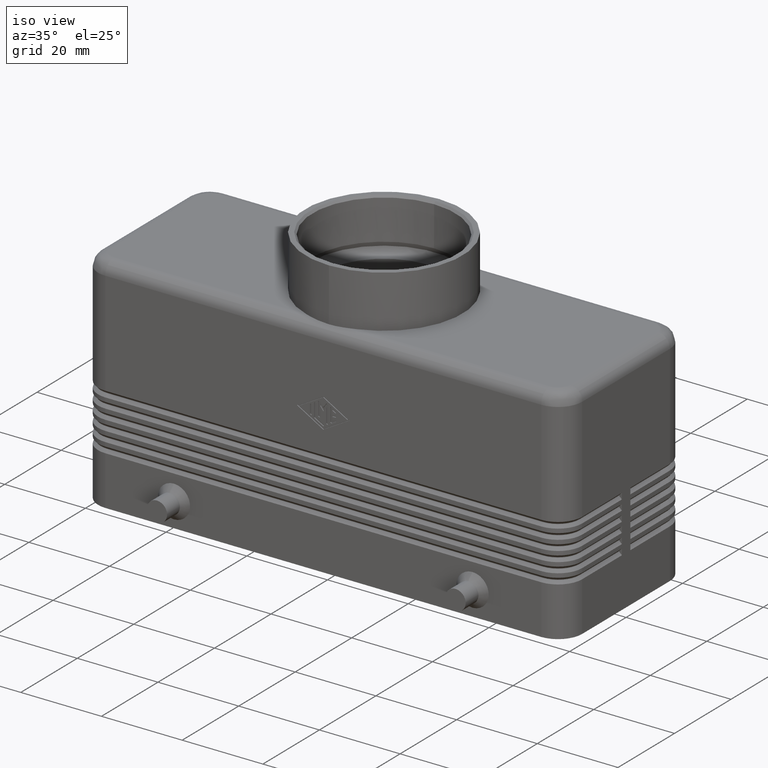
[diagram: clean part render]
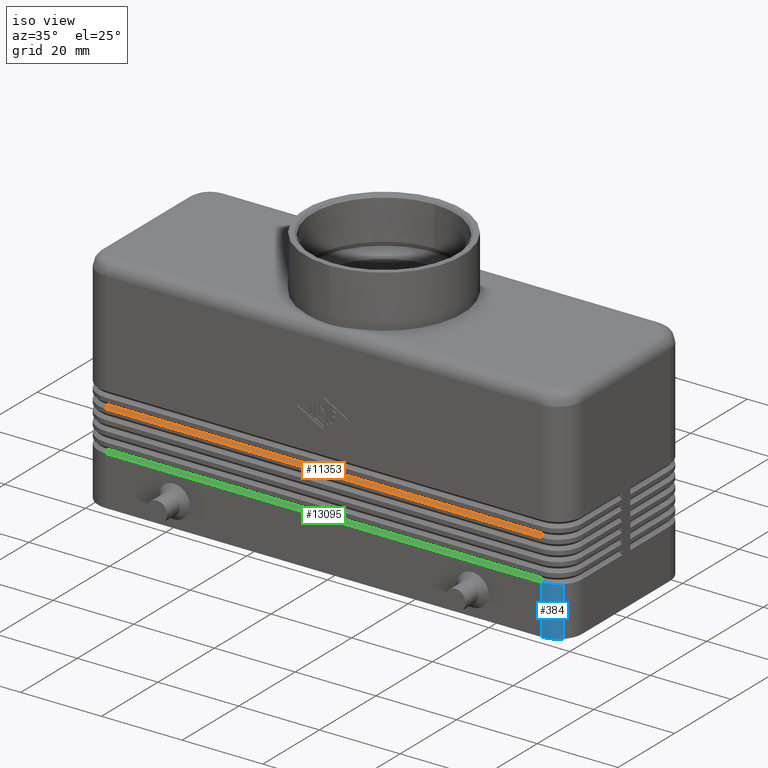
[diagram: same view with three faces highlighted in distinct colors, each labeled with its STEP entity id]
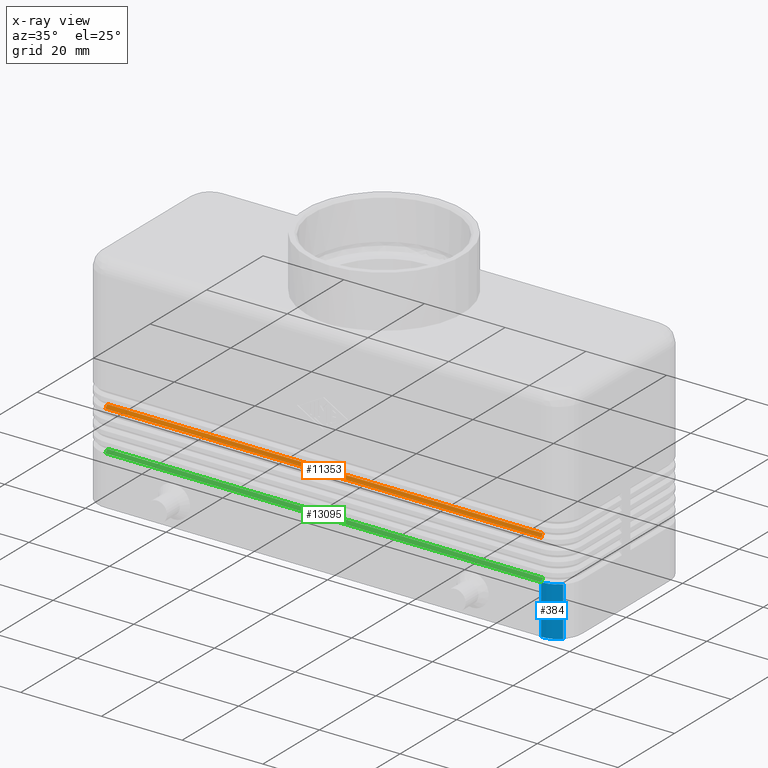
[diagram: x-ray of the same camera — body ghosted, the three highlighted faces saturated]
A machine part, iso view with three faces highlighted in distinct colors.
The next image is the same camera in x-ray (body ghosted, the three faces saturated) — at least one of them is partly hidden behind the body in this view.
Their STEP definitions:

[orange] entity #11353 — the highlighted planar face has unit normal (-0, -0.7071, 0.7071).
#1239=CARTESIAN_POINT('',(-53.999999999999986,-21.500000000000000,22.250000000000021));
#1240=VERTEX_POINT('',#1239);
#1270=CARTESIAN_POINT('',(54.0,-21.500000000000000,22.250000000000000));
#1271=VERTEX_POINT('',#1270);
#1310=CARTESIAN_POINT('',(54.000000000000014,-20.799999999999979,22.950000000000003));
#1311=VERTEX_POINT('',#1310);
#1319=CARTESIAN_POINT('',(54.0,-21.500000000000000,22.250000000000000));
#1320=DIRECTION('',(1.435513E-014,0.707106781186556,0.707106781186539));
#1321=VECTOR('',#1320,0.989949493661183);
#1322=LINE('',#1319,#1321);
#1323=EDGE_CURVE('',#1271,#1311,#1322,.T.);
#11314=CARTESIAN_POINT('',(-53.999999999999993,-20.800000000000001,22.950000000000003));
#11315=VERTEX_POINT('',#11314);
#11316=CARTESIAN_POINT('',(-53.999999999999986,-21.500000000000000,22.250000000000021));
#11317=DIRECTION('',(-7.177566E-015,0.707106781186557,0.707106781186539));
#11318=VECTOR('',#11317,0.989949493661153);
#11319=LINE('',#11316,#11318);
#11320=EDGE_CURVE('',#1240,#11315,#11319,.T.);
#11332=CARTESIAN_POINT('',(4.718448E-015,-21.150000000000002,22.600000000000001));
#11333=DIRECTION('',(-3.047225E-034,-0.707106781186550,0.707106781186545));
#11334=DIRECTION('',(1.0,0.0,0.0));
#11335=AXIS2_PLACEMENT_3D('',#11332,#11333,#11334);
#11336=PLANE('',#11335);
#11337=ORIENTED_EDGE('',*,*,#1323,.T.);
#11338=CARTESIAN_POINT('',(54.000000000000014,-20.799999999999979,22.950000000000003));
#11339=DIRECTION('',(-1.0,0.0,0.0));
#11340=VECTOR('',#11339,108.0);
#11341=LINE('',#11338,#11340);
#11342=EDGE_CURVE('',#1311,#11315,#11341,.T.);
#11343=ORIENTED_EDGE('',*,*,#11342,.T.);
#11344=ORIENTED_EDGE('',*,*,#11320,.F.);
#11345=CARTESIAN_POINT('',(-53.999999999999986,-21.500000000000000,22.250000000000021));
#11346=DIRECTION('',(1.0,0.0,0.0));
#11347=VECTOR('',#11346,107.999999999999990);
#11348=LINE('',#11345,#11347);
#11349=EDGE_CURVE('',#1240,#1271,#11348,.T.);
#11350=ORIENTED_EDGE('',*,*,#11349,.T.);
#11351=EDGE_LOOP('',(#11337,#11343,#11344,#11350));
#11352=FACE_OUTER_BOUND('',#11351,.T.);
#11353=ADVANCED_FACE('',(#11352),#11336,.T.);

[blue] entity #384 — the highlighted cylindrical surface (edge-blend (fillet) strip) has radius 6 mm, axis along (0, 0, -1).
#343=CARTESIAN_POINT('',(54.0,-15.499999999999998,13.750000000000004));
#344=DIRECTION('',(1.614870E-016,0.0,-1.0));
#345=DIRECTION('',(0.707106781186547,-0.707106781186548,0.0));
#346=AXIS2_PLACEMENT_3D('',#343,#344,#345);
#347=CYLINDRICAL_SURFACE('',#346,6.0);
#348=CARTESIAN_POINT('',(58.242640687119284,-19.742640687119287,12.250000000000021));
#349=VERTEX_POINT('',#348);
#350=CARTESIAN_POINT('',(58.242640687119284,-19.742640687119284,1.776357E-014));
#351=VERTEX_POINT('',#350);
#352=CARTESIAN_POINT('',(58.242640687119284,-19.742640687119287,12.250000000000021));
#353=DIRECTION('',(0.0,0.0,-1.0));
#354=VECTOR('',#353,12.250000000000004);
#355=LINE('',#352,#354);
#356=EDGE_CURVE('',#349,#351,#355,.T.);
#357=ORIENTED_EDGE('',*,*,#356,.F.);
#358=CARTESIAN_POINT('',(54.0,-21.500000000000000,12.250000000000000));
#359=VERTEX_POINT('',#358);
#360=CARTESIAN_POINT('',(54.0,-15.499999999999998,12.250000000000021));
#361=DIRECTION('',(0.0,0.0,1.0));
#362=DIRECTION('',(0.707106781186547,-0.707106781186548,0.0));
#363=AXIS2_PLACEMENT_3D('',#360,#361,#362);
#364=CIRCLE('',#363,6.000000000000001);
#365=EDGE_CURVE('',#359,#349,#364,.T.);
#366=ORIENTED_EDGE('',*,*,#365,.F.);
#367=CARTESIAN_POINT('',(54.0,-21.500000000000000,0.0));
#368=VERTEX_POINT('',#367);
#369=CARTESIAN_POINT('',(54.0,-21.500000000000000,12.250000000000000));
#370=DIRECTION('',(0.0,0.0,-1.0));
#371=VECTOR('',#370,12.250000000000000);
#372=LINE('',#369,#371);
#373=EDGE_CURVE('',#359,#368,#372,.T.);
#374=ORIENTED_EDGE('',*,*,#373,.T.);
#375=CARTESIAN_POINT('',(54.0,-15.499999999999998,1.776357E-014));
#376=DIRECTION('',(0.0,0.0,1.0));
#377=DIRECTION('',(0.707106781186547,-0.707106781186548,0.0));
#378=AXIS2_PLACEMENT_3D('',#375,#376,#377);
#379=CIRCLE('',#378,6.0);
#380=EDGE_CURVE('',#368,#351,#379,.T.);
#381=ORIENTED_EDGE('',*,*,#380,.T.);
#382=EDGE_LOOP('',(#357,#366,#374,#381));
#383=FACE_OUTER_BOUND('',#382,.T.);
#384=ADVANCED_FACE('',(#383),#347,.T.);

[green] entity #13095 — the highlighted planar face has unit normal (-0, -0.7071, 0.7071).
#325=CARTESIAN_POINT('',(-53.999999999999993,-21.500000000000000,12.250000000000023));
#326=VERTEX_POINT('',#325);
#358=CARTESIAN_POINT('',(54.0,-21.500000000000000,12.250000000000000));
#359=VERTEX_POINT('',#358);
#398=CARTESIAN_POINT('',(54.000000000000014,-20.799999999999979,12.950000000000003));
#399=VERTEX_POINT('',#398);
#407=CARTESIAN_POINT('',(54.0,-21.500000000000000,12.250000000000000));
#408=DIRECTION('',(1.435513E-014,0.707106781186556,0.707106781186539));
#409=VECTOR('',#408,0.989949493661183);
#410=LINE('',#407,#409);
#411=EDGE_CURVE('',#359,#399,#410,.T.);
#13056=CARTESIAN_POINT('',(-53.999999999999993,-20.800000000000001,12.950000000000003));
#13057=VERTEX_POINT('',#13056);
#13058=CARTESIAN_POINT('',(-53.999999999999993,-21.500000000000000,12.250000000000023));
#13059=DIRECTION('',(0.0,0.707106781186557,0.707106781186538));
#13060=VECTOR('',#13059,0.989949493661152);
#13061=LINE('',#13058,#13060);
#13062=EDGE_CURVE('',#326,#13057,#13061,.T.);
#13074=CARTESIAN_POINT('',(4.718448E-015,-21.150000000000002,12.600000000000001));
#13075=DIRECTION('',(-3.047225E-034,-0.707106781186550,0.707106781186545));
#13076=DIRECTION('',(1.0,0.0,0.0));
#13077=AXIS2_PLACEMENT_3D('',#13074,#13075,#13076);
#13078=PLANE('',#13077);
#13079=ORIENTED_EDGE('',*,*,#411,.T.);
#13080=CARTESIAN_POINT('',(54.000000000000014,-20.799999999999979,12.950000000000003));
#13081=DIRECTION('',(-1.0,0.0,0.0));
#13082=VECTOR('',#13081,108.0);
#13083=LINE('',#13080,#13082);
#13084=EDGE_CURVE('',#399,#13057,#13083,.T.);
#13085=ORIENTED_EDGE('',*,*,#13084,.T.);
#13086=ORIENTED_EDGE('',*,*,#13062,.F.);
#13087=CARTESIAN_POINT('',(-53.999999999999993,-21.500000000000000,12.250000000000023));
#13088=DIRECTION('',(1.0,0.0,0.0));
#13089=VECTOR('',#13088,108.0);
#13090=LINE('',#13087,#13089);
#13091=EDGE_CURVE('',#326,#359,#13090,.T.);
#13092=ORIENTED_EDGE('',*,*,#13091,.T.);
#13093=EDGE_LOOP('',(#13079,#13085,#13086,#13092));
#13094=FACE_OUTER_BOUND('',#13093,.T.);
#13095=ADVANCED_FACE('',(#13094),#13078,.T.);